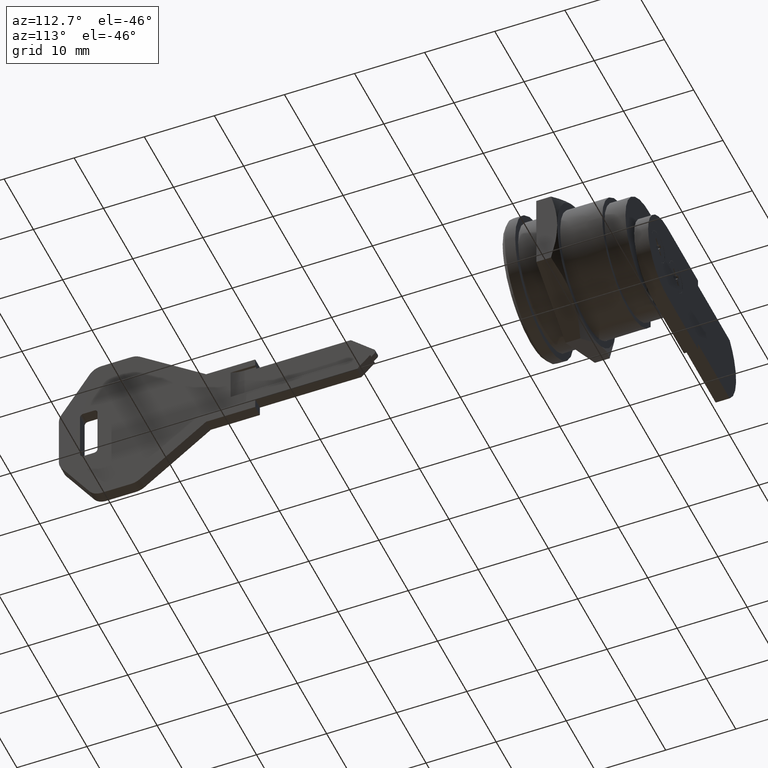
[diagram: clean part render]
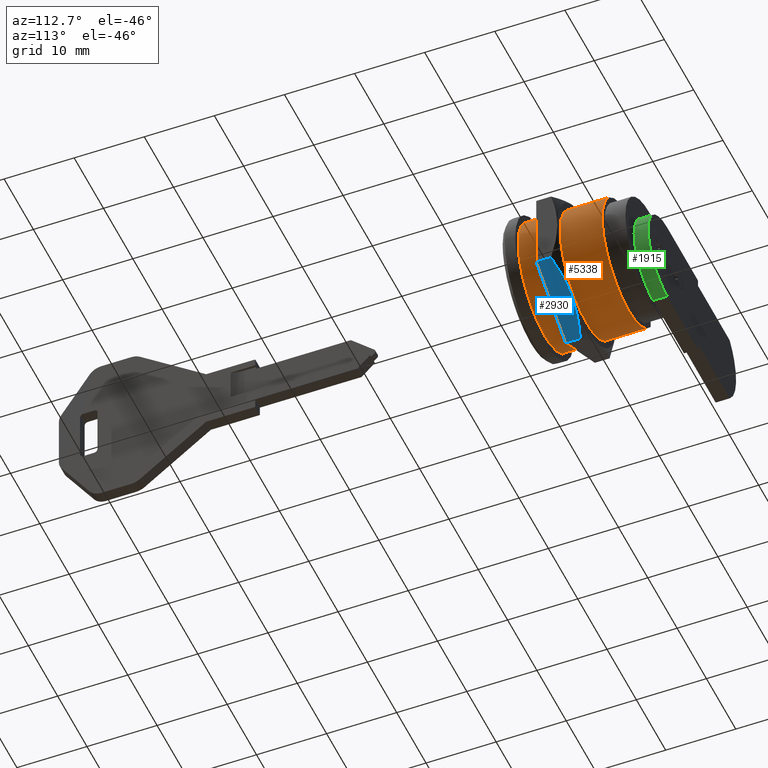
[diagram: same view with three faces highlighted in distinct colors, each labeled with its STEP entity id]
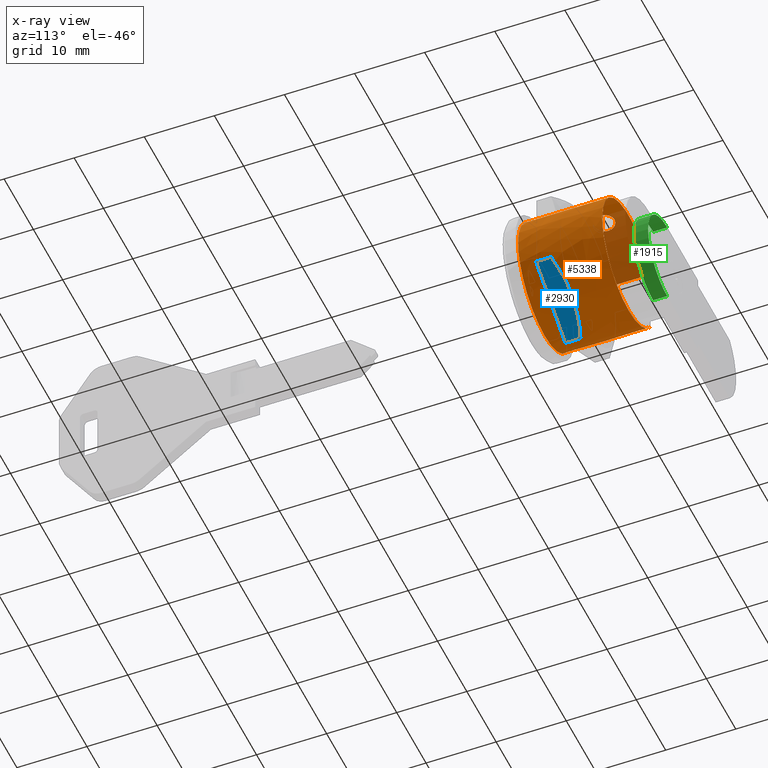
[diagram: x-ray of the same camera — body ghosted, the three highlighted faces saturated]
A machine part, auxiliary view with three faces highlighted in distinct colors.
The next image is the same camera in x-ray (body ghosted, the three faces saturated) — at least one of them is partly hidden behind the body in this view.
Their STEP definitions:

[orange] entity #5338 — the highlighted face is a freeform B-spline surface patch.
#3424=CARTESIAN_POINT('',(11.452470151388431,-1.126244234670909,8.929253976096870));
#3425=VERTEX_POINT('',#3424);
#3426=CARTESIAN_POINT('',(11.975000000000000,2.466560E-015,9.000000000000002));
#3427=VERTEX_POINT('',#3426);
#3428=CARTESIAN_POINT('',(11.452470151388431,-1.126244234670909,8.929253976096870));
#3429=CARTESIAN_POINT('',(11.483616779710699,-1.099904777617788,8.932576070164204));
#3430=CARTESIAN_POINT('',(11.513510142160550,-1.072410207865030,8.935925636889943));
#3431=CARTESIAN_POINT('',(11.610105939084869,-0.975962784033776,8.947187214421327));
#3432=CARTESIAN_POINT('',(11.671217830263620,-0.901836210105914,8.955068775907465));
#3433=CARTESIAN_POINT('',(11.752329942687290,-0.780803050452071,8.966157924617297));
#3434=CARTESIAN_POINT('',(11.777329603503960,-0.739170618173663,8.969695610058924));
#3435=CARTESIAN_POINT('',(11.822824273467459,-0.654278274348244,8.976287232458502));
#3436=CARTESIAN_POINT('',(11.863999031514510,-0.567485281447349,8.982420675034666));
#3437=CARTESIAN_POINT('',(11.896609307348999,-0.476913117844981,8.987474511704994));
#3438=CARTESIAN_POINT('',(11.924848890941780,-0.384407748788277,8.991906077311484));
#3439=CARTESIAN_POINT('',(11.936815545466629,-0.336965936375940,8.993815956240507));
#3440=CARTESIAN_POINT('',(11.965402967123440,-0.194059165810153,8.998412472663238));
#3441=CARTESIAN_POINT('',(11.975000000000000,-0.097621802823558,9.000000000000002));
#3442=CARTESIAN_POINT('',(11.975000000000000,2.602085E-015,9.000000000000002));
#3443=B_SPLINE_CURVE_WITH_KNOTS('',3,(#3428,#3429,#3430,#3431,#3432,#3433,#3434,#3435,#3436,#3437,#3438,#3439,#3440,#3441,#3442),.UNSPECIFIED.,.F.,.U.,(4,2,2,2,1,2,2,4),(0.861809783530599,0.874999999999999,0.906249999999999,0.921874999999999,0.937499999999999,0.953124999999999,0.968750000000000,1.0),.UNSPECIFIED.);
#3444=EDGE_CURVE('',#3425,#3427,#3443,.T.);
#3446=CARTESIAN_POINT('',(9.025000112160329,0.000575215581949,8.999999981618167));
#3447=VERTEX_POINT('',#3446);
#3448=CARTESIAN_POINT('',(11.975000000000000,2.466560E-015,9.000000000000002));
#3449=CARTESIAN_POINT('',(11.975000000000000,0.097621802823557,9.000000000000002));
#3450=CARTESIAN_POINT('',(11.965404330584329,0.193579720914608,8.998413257619887));
#3451=CARTESIAN_POINT('',(11.937228994947160,0.335130282419142,8.993882157312287));
#3452=CARTESIAN_POINT('',(11.925523025670520,0.381913166695100,8.992012998611882));
#3453=CARTESIAN_POINT('',(11.897379775174439,0.474661276644032,8.987594344792981));
#3454=CARTESIAN_POINT('',(11.880874673097541,0.520716474632812,8.985035038512281));
#3455=CARTESIAN_POINT('',(11.825304776711381,0.654625303399543,8.976606645784269));
#3456=CARTESIAN_POINT('',(11.779988389804540,0.739280494812416,8.969946200334226));
#3457=CARTESIAN_POINT('',(11.699712827506200,0.859438400077758,8.958961059084746));
#3458=CARTESIAN_POINT('',(11.670747493114890,0.898513978590252,8.955115460828658));
#3459=CARTESIAN_POINT('',(11.609196292970150,0.973478631515947,8.947276660552992));
#3460=CARTESIAN_POINT('',(11.576807354332130,1.009166290878717,8.943307645222699));
#3461=CARTESIAN_POINT('',(11.474933853971860,1.111013818248090,8.931423249104290));
#3462=CARTESIAN_POINT('',(11.400788717371229,1.172009082227875,8.923528252339244));
#3463=CARTESIAN_POINT('',(11.279912577471761,1.252881288088911,8.912408704594791));
#3464=CARTESIAN_POINT('',(11.238122316938330,1.277937473467349,8.908838513531894));
#3465=CARTESIAN_POINT('',(11.153106576341409,1.323404904326011,8.902197891840373));
#3466=CARTESIAN_POINT('',(11.066239284688040,1.364515948358715,8.896017413415585));
#3467=CARTESIAN_POINT('',(10.975702563202219,1.397019913953164,8.890924480648225));
#3468=CARTESIAN_POINT('',(10.883294937062541,1.425146504693848,8.886459373717438));
#3469=CARTESIAN_POINT('',(10.835880678408611,1.437068752876144,8.884532954917424));
#3470=CARTESIAN_POINT('',(10.693029295061450,1.465535538201979,8.879897257079852));
#3471=CARTESIAN_POINT('',(10.597219580554491,1.474944450287308,8.878318470955518));
#3472=CARTESIAN_POINT('',(10.452659924219221,1.475027410523004,8.878304688339528));
#3473=CARTESIAN_POINT('',(10.404331543424140,1.472699905070819,8.878692373650740));
#3474=CARTESIAN_POINT('',(10.307381930097501,1.463180010499817,8.880266185942471));
#3475=CARTESIAN_POINT('',(10.259234415721551,1.456016928127556,8.881447285359945));
#3476=CARTESIAN_POINT('',(10.117263096021061,1.427743292262445,8.886051642990035));
#3477=CARTESIAN_POINT('',(10.025240266662170,1.399852789146459,8.890546298627482));
#3478=CARTESIAN_POINT('',(9.891156298274737,1.344349008178128,8.899049166851507));
#3479=CARTESIAN_POINT('',(9.846948258893560,1.323437244717399,8.902193268456566));
#3480=CARTESIAN_POINT('',(9.761679741940977,1.277828593281192,8.908854315558852));
#3481=CARTESIAN_POINT('',(9.679171045612034,1.228317572583215,8.915907381872339));
#3482=CARTESIAN_POINT('',(9.602048868134522,1.171163401276206,8.923526321107753));
#3483=CARTESIAN_POINT('',(9.527633204507810,1.110154386890213,8.931321456159777));
#3484=CARTESIAN_POINT('',(9.491688955488620,1.077632752000470,8.935317690776429));
#3485=CARTESIAN_POINT('',(9.388636434176982,0.974643559067672,8.947337495920952));
#3486=CARTESIAN_POINT('',(9.327724888653712,0.900340668981168,8.955211035536589));
#3487=CARTESIAN_POINT('',(9.247610337501479,0.780672432901719,8.966167244442392));
#3488=CARTESIAN_POINT('',(9.222795045783707,0.739403903338960,8.969677538169622));
#3489=CARTESIAN_POINT('',(9.177041678060084,0.654027450308830,8.976306666177360));
#3490=CARTESIAN_POINT('',(9.156120101874677,0.609871988592123,8.979423899248886));
#3491=CARTESIAN_POINT('',(9.100600036226783,0.476059695426991,8.987844946697477));
#3492=CARTESIAN_POINT('',(9.072626322862350,0.384123705994449,8.992297866559198));
#3493=CARTESIAN_POINT('',(9.044206431838035,0.242116698766008,8.996867370912316));
#3494=CARTESIAN_POINT('',(9.036985787025438,0.193858516993036,8.998042186322078));
#3495=CARTESIAN_POINT('',(9.027391455942238,0.097034983095805,8.999607131619587));
#3496=CARTESIAN_POINT('',(9.025018897506934,0.048745649418450,8.999996902908814));
#3497=CARTESIAN_POINT('',(9.025000112160329,0.000575215581949,8.999999981618167));
#3498=B_SPLINE_CURVE_WITH_KNOTS('',3,(#3448,#3449,#3450,#3451,#3452,#3453,#3454,#3455,#3456,#3457,#3458,#3459,#3460,#3461,#3462,#3463,#3464,#3465,#3466,#3467,#3468,#3469,#3470,#3471,#3472,#3473,#3474,#3475,#3476,#3477,#3478,#3479,#3480,#3481,#3482,#3483,#3484,#3485,#3486,#3487,#3488,#3489,#3490,#3491,#3492,#3493,#3494,#3495,#3496,#3497),.UNSPECIFIED.,.F.,.U.,(4,2,2,2,2,2,2,2,2,1,2,2,2,2,2,2,2,1,2,2,2,2,2,2,2,4),(0.0,0.031249999999999,0.046874999999998,0.062499999999998,0.093749999999997,0.109374999999996,0.124999999999996,0.156249999999995,0.171874999999995,0.187499999999995,0.203124999999995,0.218749999999996,0.249999999999996,0.265624999999996,0.281249999999996,0.312499999999995,0.328124999999995,0.343749999999995,0.359374999999995,0.374999999999995,0.406249999999995,0.421874999999995,0.437499999999995,0.468749999999995,0.484374999999995,0.499999999999995),.UNSPECIFIED.);
#3499=EDGE_CURVE('',#3427,#3447,#3498,.T.);
#3501=CARTESIAN_POINT('',(9.430070644689277,-1.015323278597698,8.942545388314930));
#3502=VERTEX_POINT('',#3501);
#3503=CARTESIAN_POINT('',(9.025000112160329,0.000575215581949,8.999999981618167));
#3504=CARTESIAN_POINT('',(9.024962644669438,-0.095765552531706,9.000006125013249));
#3505=CARTESIAN_POINT('',(9.034272607747569,-0.191634048377930,8.998465597051654));
#3506=CARTESIAN_POINT('',(9.062656146600492,-0.334709347131347,8.993900450712379));
#3507=CARTESIAN_POINT('',(9.074517313124495,-0.382037019297878,8.992006702692036));
#3508=CARTESIAN_POINT('',(9.102543538192110,-0.474413476516032,8.987606368151468));
#3509=CARTESIAN_POINT('',(9.134961088476722,-0.564982820038609,8.982578994024955));
#3510=CARTESIAN_POINT('',(9.176044664271268,-0.651994392191260,8.976454006450320));
#3511=CARTESIAN_POINT('',(9.221530474281590,-0.737203901159336,8.969858029652363));
#3512=CARTESIAN_POINT('',(9.246629060602487,-0.779116795299719,8.966303871781140));
#3513=CARTESIAN_POINT('',(9.320301361332611,-0.889398351432083,8.956222121451409));
#3514=CARTESIAN_POINT('',(9.372515614379561,-0.954692554125598,8.949430396812453));
#3515=CARTESIAN_POINT('',(9.430070644689277,-1.015323278597698,8.942545388314930));
#3516=B_SPLINE_CURVE_WITH_KNOTS('',3,(#3503,#3504,#3505,#3506,#3507,#3508,#3509,#3510,#3511,#3512,#3513,#3514,#3515),.UNSPECIFIED.,.F.,.U.,(4,2,2,1,2,2,4),(0.499999999999995,0.531249999999995,0.546874999999995,0.562499999999995,0.578124999999995,0.593749999999995,0.620960186428974),.UNSPECIFIED.);
#3517=EDGE_CURVE('',#3447,#3502,#3516,.T.);
#3602=CARTESIAN_POINT('',(9.430070644689277,-1.015323278597698,8.942545388314930));
#3603=CARTESIAN_POINT('',(9.438615643011433,-1.024324957580654,8.941523195045495));
#3604=CARTESIAN_POINT('',(9.447278365035396,-1.033223842166137,8.940498945578897));
#3605=CARTESIAN_POINT('',(9.490018214803994,-1.076042570697129,8.935507830204891));
#3606=CARTESIAN_POINT('',(9.525748026728435,-1.108520736690454,8.931525383286530));
#3607=CARTESIAN_POINT('',(9.600880194164953,-1.170285868851977,8.923642477477209));
#3608=CARTESIAN_POINT('',(9.639694134637809,-1.199086041467586,8.919804735164648));
#3609=CARTESIAN_POINT('',(9.759598515597695,-1.279327259589455,8.908772797555285));
#3610=CARTESIAN_POINT('',(9.844191254819144,-1.324727577050907,8.902050675181361));
#3611=CARTESIAN_POINT('',(9.978232080955555,-1.380478902579266,8.893516039268844));
#3612=CARTESIAN_POINT('',(10.024292999444480,-1.397020377200073,8.890924234701666));
#3613=CARTESIAN_POINT('',(10.116865477212100,-1.425191699772533,8.886451973796183));
#3614=CARTESIAN_POINT('',(10.210308726776020,-1.448663675768825,8.882659084860160));
#3615=CARTESIAN_POINT('',(10.305464577878610,-1.462910557608139,8.880310455089370));
#3616=CARTESIAN_POINT('',(10.401486667346269,-1.472496777508902,8.878725964333155));
#3617=CARTESIAN_POINT('',(10.450068123878911,-1.474959531093157,8.878315860121383));
#3618=CARTESIAN_POINT('',(10.596271944651260,-1.475078341671712,8.878296159152704));
#3619=CARTESIAN_POINT('',(10.692189116674101,-1.465589830006103,8.879887658703115));
#3620=CARTESIAN_POINT('',(10.833825861905110,-1.437533078694126,8.884457682758921));
#3621=CARTESIAN_POINT('',(10.880662248469861,-1.425859798643417,8.886344940384236));
#3622=CARTESIAN_POINT('',(10.973565724022979,-1.397753738983966,8.890809156775092));
#3623=CARTESIAN_POINT('',(11.019568559001440,-1.381305149569764,8.893387754971993));
#3624=CARTESIAN_POINT('',(11.153384898142050,-1.325909298400966,8.901874054697739));
#3625=CARTESIAN_POINT('',(11.238091355881910,-1.280682431258859,8.908578529810072));
#3626=CARTESIAN_POINT('',(11.358451510187621,-1.200421207687180,8.919625570538742));
#3627=CARTESIAN_POINT('',(11.397650021460620,-1.171406551811317,8.923495192672826));
#3628=CARTESIAN_POINT('',(11.440928999389120,-1.135928737539882,8.928028422449112));
#3629=CARTESIAN_POINT('',(11.446720915965980,-1.131106171264067,8.928640732789070));
#3630=CARTESIAN_POINT('',(11.452470151388431,-1.126244234670909,8.929253976096870));
#3631=B_SPLINE_CURVE_WITH_KNOTS('',3,(#3602,#3603,#3604,#3605,#3606,#3607,#3608,#3609,#3610,#3611,#3612,#3613,#3614,#3615,#3616,#3617,#3618,#3619,#3620,#3621,#3622,#3623,#3624,#3625,#3626,#3627,#3628,#3629,#3630),.UNSPECIFIED.,.F.,.U.,(4,2,2,2,2,2,1,2,2,2,2,2,2,2,4),(0.620960186428974,0.624999999999995,0.640624999999995,0.656249999999995,0.687499999999995,0.703124999999995,0.718749999999995,0.734374999999995,0.749999999999996,0.781249999999996,0.796874999999997,0.812499999999997,0.843749999999998,0.859374999999998,0.861809783530599),.UNSPECIFIED.);
#3632=EDGE_CURVE('',#3502,#3425,#3631,.T.);
#4463=CARTESIAN_POINT('',(2.0,7.499999999999890,4.974937185533269));
#4464=VERTEX_POINT('',#4463);
#4465=CARTESIAN_POINT('',(14.0,7.499999999999890,4.974937185533269));
#4466=VERTEX_POINT('',#4465);
#4467=CARTESIAN_POINT('',(2.0,7.499999999999890,4.974937185533269));
#4468=CARTESIAN_POINT('',(14.0,7.499999999999890,4.974937185533269));
#4469=QUASI_UNIFORM_CURVE('',1,(#4467,#4468),.UNSPECIFIED.,.F.,.U.);
#4470=EDGE_CURVE('',#4464,#4466,#4469,.T.);
#4500=CARTESIAN_POINT('',(14.0,7.499999999999890,-4.974937185533269));
#4501=VERTEX_POINT('',#4500);
#4507=CARTESIAN_POINT('',(2.0,7.499999999999890,-4.974937185533269));
#4508=VERTEX_POINT('',#4507);
#4509=CARTESIAN_POINT('',(14.0,7.499999999999890,-4.974937185533269));
#4510=CARTESIAN_POINT('',(2.0,7.499999999999890,-4.974937185533269));
#4511=QUASI_UNIFORM_CURVE('',1,(#4509,#4510),.UNSPECIFIED.,.F.,.U.);
#4512=EDGE_CURVE('',#4501,#4508,#4511,.T.);
#5206=CARTESIAN_POINT('',(14.0,-8.999999999999972,0.000000712820448));
#5207=VERTEX_POINT('',#5206);
#5208=CARTESIAN_POINT('',(14.0,-8.999999999999972,0.000000712820448));
#5209=CARTESIAN_POINT('',(14.0,-9.000092610017546,0.628985787127457));
#5210=CARTESIAN_POINT('',(14.000000000000030,-8.880195126564694,1.767119937236020));
#5211=CARTESIAN_POINT('',(13.999999999999980,-8.417696489941301,3.291693123000994));
#5212=CARTESIAN_POINT('',(14.0,-7.745521810386252,4.668200753792591));
#5213=CARTESIAN_POINT('',(14.0,-6.831418271407292,5.937927031195114));
#5214=CARTESIAN_POINT('',(14.000000000000041,-5.787139444956936,6.934537063401135));
#5215=CARTESIAN_POINT('',(14.000000000000041,-4.735308471679438,7.681169747804349));
#5216=CARTESIAN_POINT('',(13.999999999999620,-3.597707743849873,8.291700947908606));
#5217=CARTESIAN_POINT('',(14.000000000000700,-2.432379916040583,8.694456346342495));
#5218=CARTESIAN_POINT('',(13.999999999999400,-0.991948042959607,8.983508014069811));
#5219=CARTESIAN_POINT('',(14.000000000000300,0.422967301175595,9.044739966028443));
#5220=CARTESIAN_POINT('',(13.999999999999950,1.849830516805946,8.834141783945537));
#5221=CARTESIAN_POINT('',(13.999999999999989,3.119352554706260,8.474272243766492));
#5222=CARTESIAN_POINT('',(14.000000000000020,4.164649175640286,8.012453319853492));
#5223=CARTESIAN_POINT('',(13.999999999999989,5.285570281938971,7.316206235300605));
#5224=CARTESIAN_POINT('',(14.000000000000020,6.401986528784394,6.403078314778584));
#5225=CARTESIAN_POINT('',(14.0,7.135856162473389,5.524122784630243));
#5226=CARTESIAN_POINT('',(14.0,7.499999999999890,4.974937185533269));
#5227=B_SPLINE_CURVE_WITH_KNOTS('',3,(#5208,#5209,#5210,#5211,#5212,#5213,#5214,#5215,#5216,#5217,#5218,#5219,#5220,#5221,#5222,#5223,#5224,#5225,#5226),.UNSPECIFIED.,.F.,.U.,(4,1,1,1,1,1,1,1,1,1,1,1,1,1,1,1,4),(0.000000108474275,1.886946686145162,3.414523966205039,4.762388813229549,6.469670926222150,8.087090300523190,9.075535144649821,10.333505932162170,11.950881738931720,12.759578055289721,14.736460412531519,16.174156922790871,17.072731385700742,18.690153522661070,19.588721195709692,21.026448940541560,23.003258815165381),.UNSPECIFIED.);
#5228=EDGE_CURVE('',#5207,#4466,#5227,.T.);
#5230=CARTESIAN_POINT('',(14.0,7.499999999999890,-4.974937185533269));
#5231=CARTESIAN_POINT('',(14.0,7.152392097934869,-5.499140470905218));
#5232=CARTESIAN_POINT('',(14.000000000000011,6.423352061934439,-6.381319950683289));
#5233=CARTESIAN_POINT('',(14.000000000000011,5.334232566184393,-7.281236695342810));
#5234=CARTESIAN_POINT('',(13.999999999999959,4.293219651424507,-7.935035897735876));
#5235=CARTESIAN_POINT('',(14.000000000000069,3.152395815028061,-8.473527138550409));
#5236=CARTESIAN_POINT('',(13.999999999999959,1.908276169187536,-8.826227549206134));
#5237=CARTESIAN_POINT('',(14.000000000000050,0.541563052260184,-9.013887737785945));
#5238=CARTESIAN_POINT('',(13.999999999999970,-0.631276909910496,-9.010021713574734));
#5239=CARTESIAN_POINT('',(13.999999999999851,-2.055397063317877,-8.797592635566668));
#5240=CARTESIAN_POINT('',(14.000000000000140,-3.263374069914736,-8.426769375371483));
#5241=CARTESIAN_POINT('',(13.999999999999840,-4.612630366831787,-7.770719421757002));
#5242=CARTESIAN_POINT('',(14.000000000000041,-5.699708185213830,-7.015226683116918));
#5243=CARTESIAN_POINT('',(14.000000000000060,-6.758548838015383,-5.994450392246360));
#5244=CARTESIAN_POINT('',(14.0,-7.654605216081242,-4.825415613137833));
#5245=CARTESIAN_POINT('',(13.999999999999799,-8.465370445778474,-3.246202638908473));
#5246=CARTESIAN_POINT('',(14.000000000000590,-8.914704417157456,-1.587459180064047));
#5247=CARTESIAN_POINT('',(13.999999999999471,-9.000007377254823,-0.449263450332524));
#5248=CARTESIAN_POINT('',(14.0,-8.999999999999972,0.000000712820448));
#5249=B_SPLINE_CURVE_WITH_KNOTS('',3,(#5230,#5231,#5232,#5233,#5234,#5235,#5236,#5237,#5238,#5239,#5240,#5241,#5242,#5243,#5244,#5245,#5246,#5247,#5248),.UNSPECIFIED.,.F.,.U.,(4,1,1,1,1,1,1,1,1,1,1,1,1,1,1,1,4),(0.000000108488919,1.886946803098056,3.414524177836100,4.223239869439603,5.571102799906406,7.188526999388580,8.087090801749184,9.704535506026479,10.692965907141801,12.400154963403979,13.478470195971839,15.185737995400380,16.353877644611959,17.881443747073060,19.588722409756940,21.655453559507439,23.003260240824009),.UNSPECIFIED.);
#5250=EDGE_CURVE('',#4501,#5207,#5249,.T.);
#5259=CARTESIAN_POINT('',(14.300000000000001,7.627658610857193,4.776905286502555));
#5260=CARTESIAN_POINT('',(1.692499999999999,7.627658610857193,4.776905286502555));
#5261=CARTESIAN_POINT('',(14.300000000000002,2.034621128794978,13.707746061479275));
#5262=CARTESIAN_POINT('',(1.692499999999999,2.034621128794978,13.707746061479275));
#5263=CARTESIAN_POINT('',(14.300000000000001,-5.911322349904808,6.786476852941875));
#5264=CARTESIAN_POINT('',(1.692499999999999,-5.911322349904808,6.786476852941875));
#5265=CARTESIAN_POINT('',(14.300000000000002,-13.857265828604591,-0.134792355595529));
#5266=CARTESIAN_POINT('',(1.692499999999999,-13.857265828604591,-0.134792355595529));
#5267=CARTESIAN_POINT('',(14.300000000000001,-5.778189511881752,-6.900183038498303));
#5268=CARTESIAN_POINT('',(1.692499999999999,-5.778189511881752,-6.900183038498303));
#5269=CARTESIAN_POINT('',(14.300000000000002,2.300886804841093,-13.665573721401078));
#5270=CARTESIAN_POINT('',(1.692499999999999,2.300886804841093,-13.665573721401078));
#5271=CARTESIAN_POINT('',(14.300000000000001,7.719138320289401,-4.627623968327558));
#5272=CARTESIAN_POINT('',(1.692499999999999,7.719138320289401,-4.627623968327558));
#5280=(BOUNDED_SURFACE()B_SPLINE_SURFACE(1,2,((#5259,#5261,#5263,#5265,#5267,#5269,#5271),(#5260,#5262,#5264,#5266,#5268,#5270,#5272)),.UNSPECIFIED.,.F.,.F.,.U.)B_SPLINE_SURFACE_WITH_KNOTS((2,2),(3,2,2,3),(0.0,12.607500000000011),(0.0,16.596227319383448,33.192454638766897,49.788681958150363),.UNSPECIFIED.)GEOMETRIC_REPRESENTATION_ITEM()RATIONAL_B_SPLINE_SURFACE(((1.0,0.649448048330184,1.0,0.649448048330184,1.0,0.649448048330184,1.0),(1.0,0.649448048330184,1.0,0.649448048330184,1.0,0.649448048330184,1.0)))REPRESENTATION_ITEM('')SURFACE());
#5281=ORIENTED_EDGE('',*,*,#4470,.F.);
#5282=CARTESIAN_POINT('',(2.0,-8.999999999999972,0.000000712820448));
#5283=VERTEX_POINT('',#5282);
#5284=CARTESIAN_POINT('',(2.0,-8.999999999999972,0.000000712820448));
#5285=CARTESIAN_POINT('',(1.999999999999997,-9.000092074774367,0.628984997038373));
#5286=CARTESIAN_POINT('',(2.000000000000009,-8.880197055268384,1.767122377127228));
#5287=CARTESIAN_POINT('',(1.999999999999989,-8.435148828022660,3.234158159969072));
#5288=CARTESIAN_POINT('',(2.000000000000018,-7.828785937315400,4.507930740836354));
#5289=CARTESIAN_POINT('',(1.999999999999991,-7.122137256266811,5.554164326031946));
#5290=CARTESIAN_POINT('',(2.000000000000002,-6.111827244616544,6.663338836217180));
#5291=CARTESIAN_POINT('',(2.000000000000013,-4.999925014159035,7.539252849921659));
#5292=CARTESIAN_POINT('',(1.999999999999961,-3.597698103785840,8.291675457844578));
#5293=CARTESIAN_POINT('',(2.000000000000072,-2.062877004903482,8.822274721706245));
#5294=CARTESIAN_POINT('',(1.999999999999961,-0.599431801577068,9.018212592505062));
#5295=CARTESIAN_POINT('',(2.000000000000002,0.809423679935180,8.987611264950022));
#5296=CARTESIAN_POINT('',(2.000000000000006,2.117377750896363,8.794738858859274));
#5297=CARTESIAN_POINT('',(1.999999999999997,3.659017931258300,8.281883703846445));
#5298=CARTESIAN_POINT('',(2.000000000000001,5.076264764686378,7.487456044401747));
#5299=CARTESIAN_POINT('',(2.0,6.401982527736997,6.403073180019951));
#5300=CARTESIAN_POINT('',(2.0,7.135857258851081,5.524123851562060));
#5301=CARTESIAN_POINT('',(2.0,7.499999999999890,4.974937185533269));
#5302=B_SPLINE_CURVE_WITH_KNOTS('',3,(#5284,#5285,#5286,#5287,#5288,#5289,#5290,#5291,#5292,#5293,#5294,#5295,#5296,#5297,#5298,#5299,#5300,#5301),.UNSPECIFIED.,.F.,.U.,(4,1,1,1,1,1,1,1,1,1,1,1,1,1,1,4),(0.000000108474275,1.886946686145162,3.414523966205039,4.582670373000436,6.110244563423336,7.188526553860298,9.075535144649821,10.333505932162170,11.950881738931720,13.927751595464610,14.736460412531519,16.174156922790871,17.881442638842611,19.588721195709692,21.026448940541560,23.003258815165381),.UNSPECIFIED.);
#5303=EDGE_CURVE('',#5283,#4464,#5302,.T.);
#5304=ORIENTED_EDGE('',*,*,#5303,.F.);
#5305=CARTESIAN_POINT('',(2.0,7.499999999999890,-4.974937185533269));
#5306=CARTESIAN_POINT('',(2.000000000000002,7.152392145495320,-5.499141385029263));
#5307=CARTESIAN_POINT('',(1.999999999999997,6.423351576407688,-6.381316362995073));
#5308=CARTESIAN_POINT('',(2.000000000000006,5.241542926105664,-7.357835098091226));
#5309=CARTESIAN_POINT('',(1.999999999999991,4.135057891237626,-8.022304968397650));
#5310=CARTESIAN_POINT('',(2.000000000000008,2.979416812331589,-8.525998831247550));
#5311=CARTESIAN_POINT('',(2.000000000000013,1.443010296534793,-8.945193494181615));
#5312=CARTESIAN_POINT('',(1.999999999999966,-0.031901274039610,-9.043579374536609));
#5313=CARTESIAN_POINT('',(2.000000000000008,-1.493958990200091,-8.899441734709255));
#5314=CARTESIAN_POINT('',(1.999999999999989,-2.841963053550329,-8.593943145838194));
#5315=CARTESIAN_POINT('',(1.999999999999989,-4.390293799059990,-7.925300563855019));
#5316=CARTESIAN_POINT('',(2.000000000000041,-5.749132373121527,-6.980891712000457));
#5317=CARTESIAN_POINT('',(1.999999999999919,-6.669942745338031,-6.075226262438410));
#5318=CARTESIAN_POINT('',(2.000000000000021,-7.399658777270959,-5.161544938372658));
#5319=CARTESIAN_POINT('',(2.000000000000012,-8.000254444811869,-4.190967072755966));
#5320=CARTESIAN_POINT('',(1.999999999999981,-8.490197732570561,-3.061617564768571));
#5321=CARTESIAN_POINT('',(2.000000000000004,-8.887628315660319,-1.677252063082386));
#5322=CARTESIAN_POINT('',(2.000000000000040,-9.000130341517313,-0.658946904979292));
#5323=CARTESIAN_POINT('',(2.0,-8.999999999999972,0.000000712820448));
#5324=B_SPLINE_CURVE_WITH_KNOTS('',3,(#5305,#5306,#5307,#5308,#5309,#5310,#5311,#5312,#5313,#5314,#5315,#5316,#5317,#5318,#5319,#5320,#5321,#5322,#5323),.UNSPECIFIED.,.F.,.U.,(4,1,1,1,1,1,1,1,1,1,1,1,1,1,1,1,4),(0.000000108488919,1.886946803098056,3.414524177836100,4.582670657028814,5.750816528985201,7.188526999388580,9.345087391784507,10.153824645104400,11.591460158249220,13.478470195971839,15.185737995400380,16.533586627789440,17.342303549112788,18.690154681010139,19.948148766551999,21.026450243694679,23.003260240824009),.UNSPECIFIED.);
#5325=EDGE_CURVE('',#4508,#5283,#5324,.T.);
#5326=ORIENTED_EDGE('',*,*,#5325,.F.);
#5327=ORIENTED_EDGE('',*,*,#4512,.F.);
#5328=ORIENTED_EDGE('',*,*,#5250,.T.);
#5329=ORIENTED_EDGE('',*,*,#5228,.T.);
#5330=EDGE_LOOP('',(#5281,#5304,#5326,#5327,#5328,#5329));
#5331=FACE_OUTER_BOUND('',#5330,.T.);
#5332=ORIENTED_EDGE('',*,*,#3499,.F.);
#5333=ORIENTED_EDGE('',*,*,#3444,.F.);
#5334=ORIENTED_EDGE('',*,*,#3632,.F.);
#5335=ORIENTED_EDGE('',*,*,#3517,.F.);
#5336=EDGE_LOOP('',(#5332,#5333,#5334,#5335));
#5337=FACE_BOUND('',#5336,.T.);
#5338=ADVANCED_FACE('',(#5331,#5337),#5280,.T.);

[blue] entity #2930 — the highlighted face is a freeform B-spline surface patch.
#2477=CARTESIAN_POINT('',(8.0,-5.057657775099440,-8.626708400657591));
#2478=VERTEX_POINT('',#2477);
#2479=CARTESIAN_POINT('',(7.106981001599590,-10.0,-5.773000000000001));
#2480=VERTEX_POINT('',#2479);
#2481=CARTESIAN_POINT('',(8.0,-5.057657775099440,-8.626708400657591));
#2482=CARTESIAN_POINT('',(7.998218765661069,-5.458289564986446,-8.395383605176834));
#2483=CARTESIAN_POINT('',(7.977829021819361,-5.860107385834360,-8.163373995419246));
#2484=CARTESIAN_POINT('',(7.928860129781928,-6.369110132298141,-7.869475809611060));
#2485=CARTESIAN_POINT('',(7.917395388446640,-6.475204299885456,-7.808217037246143));
#2486=CARTESIAN_POINT('',(7.891967524738201,-6.687551865186946,-7.685607553041061));
#2487=CARTESIAN_POINT('',(7.877990358533399,-6.793886468874177,-7.624209952872057));
#2488=CARTESIAN_POINT('',(7.832597259623713,-7.111666178119142,-7.440723948754012));
#2489=CARTESIAN_POINT('',(7.797674966811858,-7.322321490125352,-7.319091571601628));
#2490=CARTESIAN_POINT('',(7.601667136534323,-8.370098499092645,-6.714105126623908));
#2491=CARTESIAN_POINT('',(7.376718587396923,-9.190805357655874,-6.240228986489501));
#2492=CARTESIAN_POINT('',(7.106981001599586,-10.0,-5.773000000000001));
#2493=B_SPLINE_CURVE_WITH_KNOTS('',3,(#2481,#2482,#2483,#2484,#2485,#2486,#2487,#2488,#2489,#2490,#2491,#2492),.UNSPECIFIED.,.F.,.U.,(4,2,2,2,2,4),(0.506209341660342,0.624999999999999,0.656249999999999,0.687499999999999,0.749999999999999,1.0),.UNSPECIFIED.);
#2494=EDGE_CURVE('',#2478,#2480,#2493,.T.);
#2736=CARTESIAN_POINT('',(7.106838999999800,9.321184E-016,-11.547000000000001));
#2737=VERTEX_POINT('',#2736);
#2753=CARTESIAN_POINT('',(8.0,-4.942768206553560,-8.693045637535981));
#2754=VERTEX_POINT('',#2753);
#2767=CARTESIAN_POINT('',(7.106838999999803,-4.729178E-015,-11.547000000000009));
#2768=CARTESIAN_POINT('',(7.174826096027361,-0.203943690629239,-11.429242913030700));
#2769=CARTESIAN_POINT('',(7.240005320999474,-0.408812570316297,-11.310951621899390));
#2770=CARTESIAN_POINT('',(7.364044358074446,-0.820632566204509,-11.073166756273530));
#2771=CARTESIAN_POINT('',(7.422957283822901,-1.027815444547140,-10.953539362318500));
#2772=CARTESIAN_POINT('',(7.588206630683418,-1.649464443584705,-10.594599230274209));
#2773=CARTESIAN_POINT('',(7.683312728387306,-2.064856941972029,-10.354751601705370));
#2774=CARTESIAN_POINT('',(7.838419009388512,-2.897879355345489,-9.873764460223528));
#2775=CARTESIAN_POINT('',(7.898385864655610,-3.315511394437757,-9.632623720851649));
#2776=CARTESIAN_POINT('',(7.977502780756643,-4.136015957873925,-9.158864385923605));
#2777=CARTESIAN_POINT('',(7.998206013624790,-4.538789493402152,-8.926302946509603));
#2778=CARTESIAN_POINT('',(8.0,-4.942768206553560,-8.693045637535981));
#2779=B_SPLINE_CURVE_WITH_KNOTS('',3,(#2767,#2768,#2769,#2770,#2771,#2772,#2773,#2774,#2775,#2776,#2777,#2778),.UNSPECIFIED.,.F.,.U.,(4,2,2,2,2,4),(0.0,0.062500000000000,0.125000000000000,0.250000000000000,0.374999999999999,0.494850888899985),.UNSPECIFIED.);
#2780=EDGE_CURVE('',#2737,#2754,#2779,.T.);
#2806=CARTESIAN_POINT('',(5.0,0.0,-11.547000000000001));
#2807=VERTEX_POINT('',#2806);
#2813=CARTESIAN_POINT('',(5.0,-10.0,-5.773000000000001));
#2814=VERTEX_POINT('',#2813);
#2815=CARTESIAN_POINT('',(5.0,-10.0,-5.773000000000001));
#2816=CARTESIAN_POINT('',(5.0,0.0,-11.547000000000001));
#2817=QUASI_UNIFORM_CURVE('',1,(#2815,#2816),.UNSPECIFIED.,.F.,.U.);
#2818=EDGE_CURVE('',#2814,#2807,#2817,.T.);
#2849=CARTESIAN_POINT('',(8.0,-5.057657775099440,-8.626708400657591));
#2850=CARTESIAN_POINT('',(8.0,-4.942768206553560,-8.693045637535981));
#2851=QUASI_UNIFORM_CURVE('',1,(#2849,#2850),.UNSPECIFIED.,.F.,.U.);
#2852=EDGE_CURVE('',#2478,#2754,#2851,.T.);
#2904=CARTESIAN_POINT('',(7.106838999999800,9.321184E-016,-11.547000000000001));
#2905=CARTESIAN_POINT('',(5.0,0.0,-11.547000000000001));
#2906=QUASI_UNIFORM_CURVE('',1,(#2904,#2905),.UNSPECIFIED.,.F.,.U.);
#2907=EDGE_CURVE('',#2737,#2807,#2906,.T.);
#2913=CARTESIAN_POINT('',(4.850150005814582,0.499499980618056,-11.835411288808880));
#2914=CARTESIAN_POINT('',(4.850150005814582,-10.499500248838959,-5.484588556320385));
#2915=CARTESIAN_POINT('',(8.149850074651688,0.499499980618056,-11.835411288808880));
#2916=CARTESIAN_POINT('',(8.149850074651688,-10.499500248838959,-5.484588556320385));
#2917=B_SPLINE_SURFACE_WITH_KNOTS('',1,1,((#2913,#2915),(#2914,#2916)),.UNSPECIFIED.,.F.,.F.,.U.,(2,2),(2,2),(0.0,12.700824990018880),(0.0,3.299700068837106),.UNSPECIFIED.);
#2918=ORIENTED_EDGE('',*,*,#2907,.F.);
#2919=ORIENTED_EDGE('',*,*,#2780,.T.);
#2920=ORIENTED_EDGE('',*,*,#2852,.F.);
#2921=ORIENTED_EDGE('',*,*,#2494,.T.);
#2922=CARTESIAN_POINT('',(7.106981001599590,-10.0,-5.773000000000001));
#2923=CARTESIAN_POINT('',(5.0,-10.0,-5.773000000000001));
#2924=QUASI_UNIFORM_CURVE('',1,(#2922,#2923),.UNSPECIFIED.,.F.,.U.);
#2925=EDGE_CURVE('',#2480,#2814,#2924,.T.);
#2926=ORIENTED_EDGE('',*,*,#2925,.T.);
#2927=ORIENTED_EDGE('',*,*,#2818,.T.);
#2928=EDGE_LOOP('',(#2918,#2919,#2920,#2921,#2926,#2927));
#2929=FACE_OUTER_BOUND('',#2928,.T.);
#2930=ADVANCED_FACE('',(#2929),#2917,.F.);

[green] entity #1915 — the highlighted face is a freeform B-spline surface patch.
#1817=CARTESIAN_POINT('',(19.550000000000001,0.056722480739425,4.499752499917111));
#1818=CARTESIAN_POINT('',(17.448750000000000,0.056722480739425,4.499752499917111));
#1819=CARTESIAN_POINT('',(19.549999999999997,-6.673968265060776,4.558490348196187));
#1820=CARTESIAN_POINT('',(17.448749999999997,-6.673968265060776,4.558490348196187));
#1821=CARTESIAN_POINT('',(19.550000000000001,-6.497772612341120,-2.170150164001178));
#1822=CARTESIAN_POINT('',(17.448750000000000,-6.497772612341120,-2.170150164001178));
#1823=CARTESIAN_POINT('',(19.549999999999997,-6.321576959621464,-8.898790676198543));
#1824=CARTESIAN_POINT('',(17.448749999999997,-6.321576959621464,-8.898790676198543));
#1825=CARTESIAN_POINT('',(19.550000000000001,0.396815506976568,-8.487876189742133));
#1826=CARTESIAN_POINT('',(17.448750000000000,0.396815506976568,-8.487876189742133));
#1834=(BOUNDED_SURFACE()B_SPLINE_SURFACE(1,2,((#1817,#1819,#1821,#1823,#1825),(#1818,#1820,#1822,#1824,#1826)),.UNSPECIFIED.,.F.,.F.,.U.)B_SPLINE_SURFACE_WITH_KNOTS((2,2),(3,2,3),(0.0,2.101250000000004),(0.0,11.036345221449720,22.072690442899429),.UNSPECIFIED.)GEOMETRIC_REPRESENTATION_ITEM()RATIONAL_B_SPLINE_SURFACE(((1.0,0.694658370458997,1.0,0.694658370458997,1.0),(1.0,0.694658370458997,1.0,0.694658370458997,1.0)))REPRESENTATION_ITEM('')SURFACE());
#1835=CARTESIAN_POINT('',(17.500000000000000,3.979971E-016,4.500000000000000));
#1836=VERTEX_POINT('',#1835);
#1837=CARTESIAN_POINT('',(17.500000000000000,-6.499999999999951,-2.000000805231783));
#1838=VERTEX_POINT('',#1837);
#1839=CARTESIAN_POINT('',(17.500000000000000,3.979971E-016,4.500000000000000));
#1840=CARTESIAN_POINT('',(17.499999999999961,-0.664767187700101,4.500302102019816));
#1841=CARTESIAN_POINT('',(17.500000000000050,-1.648351045140905,4.347762525993908));
#1842=CARTESIAN_POINT('',(17.499999999999979,-2.886089753692213,3.852615900954341));
#1843=CARTESIAN_POINT('',(17.500000000000011,-3.712750251129920,3.364021617597064));
#1844=CARTESIAN_POINT('',(17.499999999999989,-4.499494740976362,2.726397144619545));
#1845=CARTESIAN_POINT('',(17.500000000000021,-5.180534799016043,1.975004774002745));
#1846=CARTESIAN_POINT('',(17.499999999999979,-5.800087501797373,1.009768737186588));
#1847=CARTESIAN_POINT('',(17.500000000000028,-6.342090717568263,-0.298435603786983));
#1848=CARTESIAN_POINT('',(17.499999999999989,-6.500260472729281,-1.361838707618945));
#1849=CARTESIAN_POINT('',(17.500000000000000,-6.499999999999951,-2.000000805231783));
#1850=B_SPLINE_CURVE_WITH_KNOTS('',3,(#1839,#1840,#1841,#1842,#1843,#1844,#1845,#1846,#1847,#1848,#1849),.UNSPECIFIED.,.F.,.U.,(4,1,1,1,1,1,1,1,4),(0.000000066180304,1.994181284967976,2.951399080216278,3.988395958435471,4.865849854707532,5.982557094797133,7.019531169904530,8.295829824203793,10.210240642534810),.UNSPECIFIED.);
#1851=EDGE_CURVE('',#1836,#1838,#1850,.T.);
#1852=ORIENTED_EDGE('',*,*,#1851,.T.);
#1853=CARTESIAN_POINT('',(17.500000000000000,0.0,-8.500000000000000));
#1854=VERTEX_POINT('',#1853);
#1855=CARTESIAN_POINT('',(17.500000000000000,-6.499999999999951,-2.000000805231783));
#1856=CARTESIAN_POINT('',(17.500000000000011,-6.500075741180981,-2.478599207488559));
#1857=CARTESIAN_POINT('',(17.499999999999989,-6.387953290855001,-3.488975109140942));
#1858=CARTESIAN_POINT('',(17.500000000000021,-5.936751035225838,-4.750158681051723));
#1859=CARTESIAN_POINT('',(17.500000000000039,-5.292413934708418,-5.824908073829148));
#1860=CARTESIAN_POINT('',(17.499999999999819,-4.478630467664212,-6.780302406078429));
#1861=CARTESIAN_POINT('',(17.500000000000139,-3.519242527156046,-7.510236238467370));
#1862=CARTESIAN_POINT('',(17.499999999999812,-2.377035869480477,-8.085130197416223));
#1863=CARTESIAN_POINT('',(17.500000000000099,-1.276275097011324,-8.419051388387862));
#1864=CARTESIAN_POINT('',(17.500000000000000,-0.398827305651243,-8.500026250059328));
#1865=CARTESIAN_POINT('',(17.500000000000000,0.0,-8.500000000000000));
#1866=B_SPLINE_CURVE_WITH_KNOTS('',3,(#1855,#1856,#1857,#1858,#1859,#1860,#1861,#1862,#1863,#1864,#1865),.UNSPECIFIED.,.F.,.U.,(4,1,1,1,1,1,1,1,4),(0.000000066459531,1.435799934098212,3.031170232023162,3.988395604140823,5.184868227273872,6.780230335193295,7.577911744052960,9.013744201213589,10.210239734845230),.UNSPECIFIED.);
#1867=EDGE_CURVE('',#1838,#1854,#1866,.T.);
#1868=ORIENTED_EDGE('',*,*,#1867,.T.);
#1869=CARTESIAN_POINT('',(19.500000000000000,0.0,-8.500000000000000));
#1870=VERTEX_POINT('',#1869);
#1871=CARTESIAN_POINT('',(19.500000000000000,0.0,-8.500000000000000));
#1872=CARTESIAN_POINT('',(17.500000000000000,0.0,-8.500000000000000));
#1873=QUASI_UNIFORM_CURVE('',1,(#1871,#1872),.UNSPECIFIED.,.F.,.U.);
#1874=EDGE_CURVE('',#1870,#1854,#1873,.T.);
#1875=ORIENTED_EDGE('',*,*,#1874,.F.);
#1876=CARTESIAN_POINT('',(19.500000000000000,-6.499999999999951,-2.000000805231783));
#1877=VERTEX_POINT('',#1876);
#1878=CARTESIAN_POINT('',(19.500000000000000,-6.499999999999951,-2.000000805231783));
#1879=CARTESIAN_POINT('',(19.499999999999940,-6.500320204728481,-2.664768862733442));
#1880=CARTESIAN_POINT('',(19.500000000000188,-6.343629023206934,-3.674941832540109));
#1881=CARTESIAN_POINT('',(19.499999999999840,-5.840660355542911,-4.910186376039228));
#1882=CARTESIAN_POINT('',(19.500000000000220,-5.237655033138159,-5.916437136532458));
#1883=CARTESIAN_POINT('',(19.499999999999812,-4.434184248489409,-6.813974143978121));
#1884=CARTESIAN_POINT('',(19.500000000000071,-3.469514252258788,-7.529279873955742));
#1885=CARTESIAN_POINT('',(19.499999999999940,-2.428244208436335,-8.069601556990056));
#1886=CARTESIAN_POINT('',(19.500000000000039,-1.276277475214590,-8.419059403574277));
#1887=CARTESIAN_POINT('',(19.500000000000011,-0.398826832202736,-8.500024647893660));
#1888=CARTESIAN_POINT('',(19.500000000000000,0.0,-8.500000000000000));
#1889=B_SPLINE_CURVE_WITH_KNOTS('',3,(#1878,#1879,#1880,#1881,#1882,#1883,#1884,#1885,#1886,#1887,#1888),.UNSPECIFIED.,.F.,.U.,(4,1,1,1,1,1,1,1,4),(0.000000066459531,1.994181107886732,3.031170232023162,3.988395604140823,5.503942480261372,6.620687234679639,7.577911744052960,9.013744201213589,10.210239734845230),.UNSPECIFIED.);
#1890=EDGE_CURVE('',#1877,#1870,#1889,.T.);
#1891=ORIENTED_EDGE('',*,*,#1890,.F.);
#1892=CARTESIAN_POINT('',(19.500000000000000,3.979971E-016,4.500000000000000));
#1893=VERTEX_POINT('',#1892);
#1894=CARTESIAN_POINT('',(19.500000000000000,3.979971E-016,4.500000000000000));
#1895=CARTESIAN_POINT('',(19.499999999999961,-0.664766978619107,4.500301824402192));
#1896=CARTESIAN_POINT('',(19.500000000000039,-1.648351673595832,4.347763341859756));
#1897=CARTESIAN_POINT('',(19.499999999999961,-2.886088028743988,3.852613755662247));
#1898=CARTESIAN_POINT('',(19.500000000000039,-3.804601189062308,3.309758079530552));
#1899=CARTESIAN_POINT('',(19.500000000000000,-4.576961843551615,2.651735434681088));
#1900=CARTESIAN_POINT('',(19.500000000000011,-5.238135955953199,1.885209385908889));
#1901=CARTESIAN_POINT('',(19.499999999999989,-5.800096720023436,1.009775620597002));
#1902=CARTESIAN_POINT('',(19.500000000000011,-6.342084304384627,-0.298440283797071));
#1903=CARTESIAN_POINT('',(19.499999999999989,-6.500262760313054,-1.361837044383749));
#1904=CARTESIAN_POINT('',(19.500000000000000,-6.499999999999951,-2.000000805231783));
#1905=B_SPLINE_CURVE_WITH_KNOTS('',3,(#1894,#1895,#1896,#1897,#1898,#1899,#1900,#1901,#1902,#1903,#1904),.UNSPECIFIED.,.F.,.U.,(4,1,1,1,1,1,1,1,4),(0.000000066180304,1.994181284967976,2.951399080216278,3.988395958435471,5.184868687441923,5.982557094797133,7.019531169904530,8.295829824203793,10.210240642534810),.UNSPECIFIED.);
#1906=EDGE_CURVE('',#1893,#1877,#1905,.T.);
#1907=ORIENTED_EDGE('',*,*,#1906,.F.);
#1908=CARTESIAN_POINT('',(19.500000000000000,3.979971E-016,4.500000000000000));
#1909=CARTESIAN_POINT('',(17.500000000000000,3.979971E-016,4.500000000000000));
#1910=QUASI_UNIFORM_CURVE('',1,(#1908,#1909),.UNSPECIFIED.,.F.,.U.);
#1911=EDGE_CURVE('',#1893,#1836,#1910,.T.);
#1912=ORIENTED_EDGE('',*,*,#1911,.T.);
#1913=EDGE_LOOP('',(#1852,#1868,#1875,#1891,#1907,#1912));
#1914=FACE_OUTER_BOUND('',#1913,.T.);
#1915=ADVANCED_FACE('',(#1914),#1834,.T.);